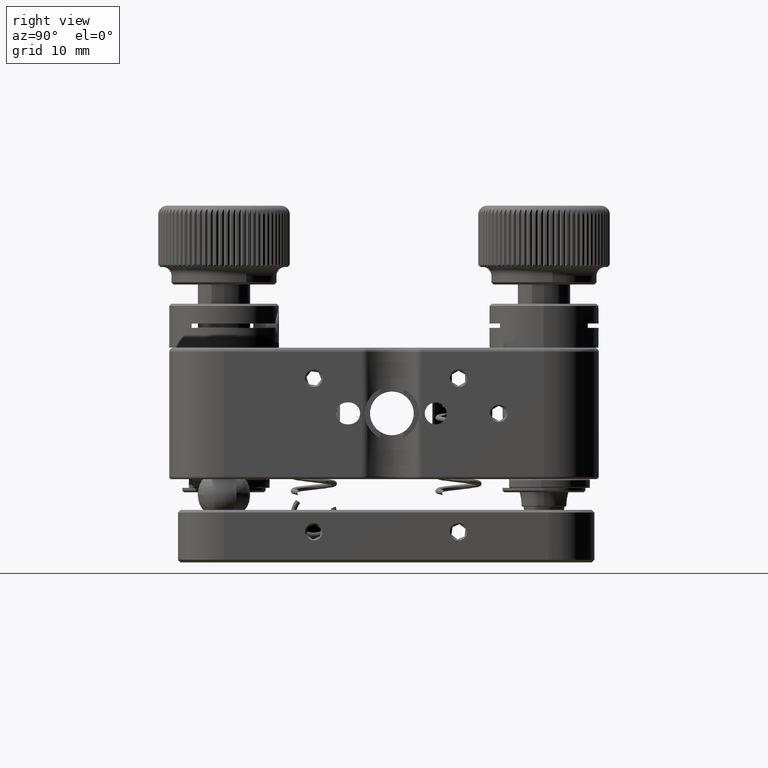
[diagram: clean part render]
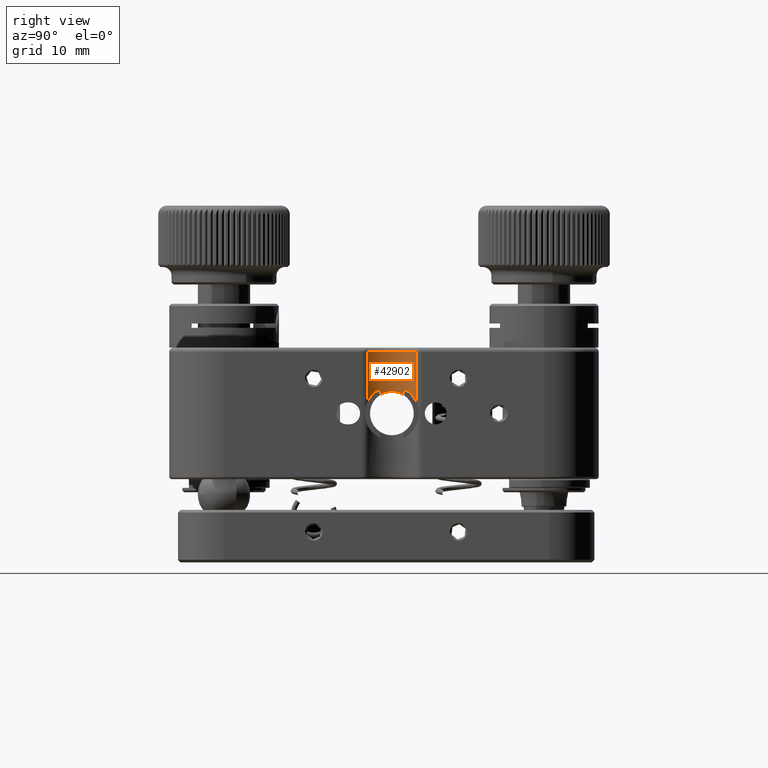
[diagram: same view with one face highlighted and labeled with its STEP entity id]
A machine part, right view. The second image highlights one B-rep face of the part: STEP entity #42902.
In plain terms, the highlighted cylindrical surface (partial cylindrical patch) has radius 4.35 mm, axis along (-0, -0, 1).
Its self-contained STEP definition (entity closure, byte-faithful):
#30 = VERTEX_POINT ( 'NONE', #12606 ) ;
#266 = ORIENTED_EDGE ( 'NONE', *, *, #10469, .F. ) ;
#719 = DIRECTION ( 'NONE',  ( -0.000000000000000000, -0.000000000000000000, 1.000000000000000000 ) ) ;
#2180 = CARTESIAN_POINT ( 'NONE',  ( 23.31872024415392630, 0.4386196123213028097, 2.467833953914962297 ) ) ;
#2566 = CARTESIAN_POINT ( 'NONE',  ( 24.27570093457944012, 3.645287929726478637, -7.500000000000000000 ) ) ;
#4569 = DIRECTION ( 'NONE',  ( -0.000000000000000000, -0.000000000000000000, 1.000000000000000000 ) ) ;
#5852 = VERTEX_POINT ( 'NONE', #6745 ) ;
#6086 = CARTESIAN_POINT ( 'NONE',  ( 23.43980412832766547, -0.2122427579503609052, 2.250186979407625465 ) ) ;
#6745 = CARTESIAN_POINT ( 'NONE',  ( 24.27570093457944012, -1.845287929726496801, 1.439928533955069812 ) ) ;
#7357 = CARTESIAN_POINT ( 'NONE',  ( 24.00394215386136665, 3.275645432154470349, 1.998546010127206340 ) ) ;
#7935 = CARTESIAN_POINT ( 'NONE',  ( 24.21213103444796744, 3.567152644797067396, 1.588896937278183152 ) ) ;
#9108 = CARTESIAN_POINT ( 'NONE',  ( 23.37144177704377412, 1.693031032326819618, 2.373653938320301915 ) ) ;
#9500 = EDGE_CURVE ( 'NONE', #15260, #22128, #53984, .T. ) ;
#10081 = CIRCLE ( 'NONE', #43400, 4.350000000000003197 ) ;
#10469 = EDGE_CURVE ( 'NONE', #50549, #15260, #11248, .T. ) ;
#10563 = CARTESIAN_POINT ( 'NONE',  ( 23.38918746994414732, -0.004617471230593879657, 2.341952928001429068 ) ) ;
#10949 = DIRECTION ( 'NONE',  ( -0.000000000000000000, 0.000000000000000000, 1.000000000000000000 ) ) ;
#11248 = B_SPLINE_CURVE_WITH_KNOTS ( 'NONE', 3,
 ( #45219, #18937, #40752, #49929, #9108, #37178, #27347, #45520 ),
 .UNSPECIFIED., .F., .F.,
 ( 4, 2, 2, 4 ),
 ( 0.006616346443600293163, 0.006962511625863838406, 0.007308676808127382782, 0.008001007172654475003 ),
 .UNSPECIFIED. ) ;
#11461 = CARTESIAN_POINT ( 'NONE',  ( 23.30000000000000071, 0.6661560764363041454, 2.499999999999988454 ) ) ;
#11999 = ORIENTED_EDGE ( 'NONE', *, *, #23636, .T. ) ;
#12132 = CARTESIAN_POINT ( 'NONE',  ( 23.93394698977562030, 3.165521669756020007, 2.122546651909849036 ) ) ;
#12606 = CARTESIAN_POINT ( 'NONE',  ( 23.50000000000000000, 2.203840481040522548, 2.812472222085053541 ) ) ;
#12710 = CARTESIAN_POINT ( 'NONE',  ( 24.27570093457980960, 3.645287929726935161, 1.439928533954247358 ) ) ;
#13973 = ORIENTED_EDGE ( 'NONE', *, *, #54199, .T. ) ;
#14952 = LINE ( 'NONE', #41550, #22378 ) ;
#15111 = EDGE_CURVE ( 'NONE', #48692, #5852, #28692, .T. ) ;
#15167 = DIRECTION ( 'NONE',  ( -0.000000000000000000, -0.000000000000000000, 1.000000000000000000 ) ) ;
#15260 = VERTEX_POINT ( 'NONE', #29795 ) ;
#16223 = ORIENTED_EDGE ( 'NONE', *, *, #55684, .T. ) ;
#16264 = CARTESIAN_POINT ( 'NONE',  ( 24.27570093457980960, 3.645287929726935161, 1.439928533954247358 ) ) ;
#16941 = CARTESIAN_POINT ( 'NONE',  ( 24.27570093457944012, -1.845287929726496801, 1.439928533955069812 ) ) ;
#18508 = VECTOR ( 'NONE', #19139, 1000.000000000000000 ) ;
#18937 = CARTESIAN_POINT ( 'NONE',  ( 23.47015486474342438, 2.108846259649303168, 2.191138103919121782 ) ) ;
#19032 = VERTEX_POINT ( 'NONE', #16264 ) ;
#19139 = DIRECTION ( 'NONE',  ( 0.000000000000000000, 0.000000000000000000, -1.000000000000000000 ) ) ;
#19243 = B_SPLINE_CURVE_WITH_KNOTS ( 'NONE', 3,
 ( #12710, #7935, #44013, #7357, #12132, #43436, #20798, #26131, #25246, #44346 ),
 .UNSPECIFIED., .F., .F.,
 ( 4, 2, 2, 2, 4 ),
 ( 0.0007399777625794077759, 0.001278363047139139622, 0.001816748331698871252, 0.002355133616258602881, 0.002893518900818334294 ),
 .UNSPECIFIED. ) ;
#19783 = FACE_OUTER_BOUND ( 'NONE', #30984, .T. ) ;
#19840 = EDGE_CURVE ( 'NONE', #19032, #28878, #57145, .T. ) ;
#20798 = CARTESIAN_POINT ( 'NONE',  ( 23.73058021643893056, 2.793210646848359513, 2.460651815375692220 ) ) ;
#22128 = VERTEX_POINT ( 'NONE', #46349 ) ;
#22378 = VECTOR ( 'NONE', #4569, 1000.000000000000000 ) ;
#22601 = ORIENTED_EDGE ( 'NONE', *, *, #19840, .T. ) ;
#23396 = CARTESIAN_POINT ( 'NONE',  ( 27.65000000000000568, 0.8999999999999910294, -7.500000000000000000 ) ) ;
#23636 = EDGE_CURVE ( 'NONE', #48692, #22128, #33526, .T. ) ;
#25246 = CARTESIAN_POINT ( 'NONE',  ( 23.54994604831270522, 2.362813993147090841, 2.738773325125259728 ) ) ;
#25473 = CARTESIAN_POINT ( 'NONE',  ( 24.27570093457944012, -1.845287929726496357, 6.999999999999999112 ) ) ;
#26127 = CARTESIAN_POINT ( 'NONE',  ( 23.50000000000000000, -0.4038404810405402112, 2.812472222085041995 ) ) ;
#26131 = CARTESIAN_POINT ( 'NONE',  ( 23.60679619437955168, 2.512017673391377048, 2.653385183218887722 ) ) ;
#26506 = CARTESIAN_POINT ( 'NONE',  ( 23.60028733852052696, -0.7230455225407615982, 2.664491221031218604 ) ) ;
#26913 = EDGE_CURVE ( 'NONE', #50549, #30, #14952, .T. ) ;
#27347 = CARTESIAN_POINT ( 'NONE',  ( 23.30000000000000782, 1.134611387153412254, 2.499999999999989342 ) ) ;
#28218 = CYLINDRICAL_SURFACE ( 'NONE', #48171, 4.350000000000003197 ) ;
#28220 = CARTESIAN_POINT ( 'NONE',  ( 24.27570093457944012, -1.845287929726496357, -7.500000000000000000 ) ) ;
#28692 = B_SPLINE_CURVE_WITH_KNOTS ( 'NONE', 3,
 ( #49146, #26506, #31010, #53901, #35483, #16941 ),
 .UNSPECIFIED., .F., .F.,
 ( 4, 2, 4 ),
 ( 0.000000000000000000, 0.001079911651904579169, 0.002159823303809158337 ),
 .UNSPECIFIED. ) ;
#28878 = VERTEX_POINT ( 'NONE', #41534 ) ;
#29795 = CARTESIAN_POINT ( 'NONE',  ( 23.29999999999999716, 0.9000000000000003553, 2.499999999999988454 ) ) ;
#30984 = EDGE_LOOP ( 'NONE', ( #22601, #16223, #13973, #36991, #11999, #41919, #266, #51384, #52460 ) ) ;
#31010 = CARTESIAN_POINT ( 'NONE',  ( 23.72690684581731446, -1.000029607772072726, 2.472538648157823982 ) ) ;
#31835 = VECTOR ( 'NONE', #46342, 1000.000000000000000 ) ;
#33297 = CARTESIAN_POINT ( 'NONE',  ( 23.29999999999999716, 0.9000000000000003553, 2.499999999999988454 ) ) ;
#33526 = LINE ( 'NONE', #37379, #18508 ) ;
#34155 = LINE ( 'NONE', #28220, #31835 ) ;
#34646 = CARTESIAN_POINT ( 'NONE',  ( 23.50000000000000000, 2.203840481040522548, 2.133072900770144997 ) ) ;
#35483 = CARTESIAN_POINT ( 'NONE',  ( 24.14719073017076667, -1.687332963350203663, 1.741076717637583426 ) ) ;
#36991 = ORIENTED_EDGE ( 'NONE', *, *, #15111, .F. ) ;
#37145 = DIRECTION ( 'NONE',  ( 1.000000000000000000, 0.000000000000000000, 0.000000000000000000 ) ) ;
#37178 = CARTESIAN_POINT ( 'NONE',  ( 23.31888131539798081, 1.362326380093163980, 2.467545190430640467 ) ) ;
#37379 = CARTESIAN_POINT ( 'NONE',  ( 23.50000000000000000, -0.4038404810405402112, -7.500000000000000000 ) ) ;
#37526 = DIRECTION ( 'NONE',  ( 1.000000000000000000, 0.000000000000000000, 0.000000000000000000 ) ) ;
#37830 = CARTESIAN_POINT ( 'NONE',  ( 27.65000000000000568, 0.8999999999999910294, 6.999999999999999112 ) ) ;
#38040 = CARTESIAN_POINT ( 'NONE',  ( 23.49999999999999645, -0.4038404810405464285, 2.133072900770139224 ) ) ;
#40725 = EDGE_CURVE ( 'NONE', #19032, #30, #19243, .T. ) ;
#40752 = CARTESIAN_POINT ( 'NONE',  ( 23.44256322007781890, 2.009659577895741567, 2.243099427563548964 ) ) ;
#41534 = CARTESIAN_POINT ( 'NONE',  ( 24.27570093457944012, 3.645287929726478637, 6.999999999999999112 ) ) ;
#41550 = CARTESIAN_POINT ( 'NONE',  ( 23.50000000000000000, 2.203840481040522548, -7.500000000000000000 ) ) ;
#41761 = VECTOR ( 'NONE', #15167, 1000.000000000000000 ) ;
#41919 = ORIENTED_EDGE ( 'NONE', *, *, #9500, .F. ) ;
#42902 = ADVANCED_FACE ( 'NONE', ( #19783 ), #28218, .F. ) ;
#43400 = AXIS2_PLACEMENT_3D ( 'NONE', #37830, #10949, #37526 ) ;
#43436 = CARTESIAN_POINT ( 'NONE',  ( 23.79750259086916486, 2.924821504126219551, 2.353272317879050668 ) ) ;
#43779 = VERTEX_POINT ( 'NONE', #25473 ) ;
#44013 = CARTESIAN_POINT ( 'NONE',  ( 24.14304162136069820, 3.476562044119467565, 1.731821413054674519 ) ) ;
#44346 = CARTESIAN_POINT ( 'NONE',  ( 23.50000000000000000, 2.203840481040522548, 2.812472222085053541 ) ) ;
#45219 = CARTESIAN_POINT ( 'NONE',  ( 23.50000000000000000, 2.203840481040522548, 2.133072900770144997 ) ) ;
#45520 = CARTESIAN_POINT ( 'NONE',  ( 23.29999999999999716, 0.9000000000000003553, 2.499999999999988454 ) ) ;
#46342 = DIRECTION ( 'NONE',  ( 0.000000000000000000, 0.000000000000000000, -1.000000000000000000 ) ) ;
#46349 = CARTESIAN_POINT ( 'NONE',  ( 23.49999999999999645, -0.4038404810405464285, 2.133072900770139224 ) ) ;
#48171 = AXIS2_PLACEMENT_3D ( 'NONE', #23396, #719, #37145 ) ;
#48692 = VERTEX_POINT ( 'NONE', #26127 ) ;
#49146 = CARTESIAN_POINT ( 'NONE',  ( 23.50000000000000000, -0.4038404810405402112, 2.812472222085041995 ) ) ;
#49929 = CARTESIAN_POINT ( 'NONE',  ( 23.39325028315384003, 1.802192043850908920, 2.334285530256269503 ) ) ;
#50549 = VERTEX_POINT ( 'NONE', #34646 ) ;
#51384 = ORIENTED_EDGE ( 'NONE', *, *, #26913, .T. ) ;
#52460 = ORIENTED_EDGE ( 'NONE', *, *, #40725, .F. ) ;
#53901 = CARTESIAN_POINT ( 'NONE',  ( 24.00262427608491933, -1.486927467561697691, 2.006523645921999055 ) ) ;
#53984 = B_SPLINE_CURVE_WITH_KNOTS ( 'NONE', 3,
 ( #33297, #11461, #2180, #10563, #6086, #38040 ),
 .UNSPECIFIED., .F., .F.,
 ( 4, 2, 4 ),
 ( 0.008001007172654475003, 0.008691072777771223501, 0.009381138382887973734 ),
 .UNSPECIFIED. ) ;
#54199 = EDGE_CURVE ( 'NONE', #43779, #5852, #34155, .T. ) ;
#55684 = EDGE_CURVE ( 'NONE', #28878, #43779, #10081, .T. ) ;
#57145 = LINE ( 'NONE', #2566, #41761 ) ;